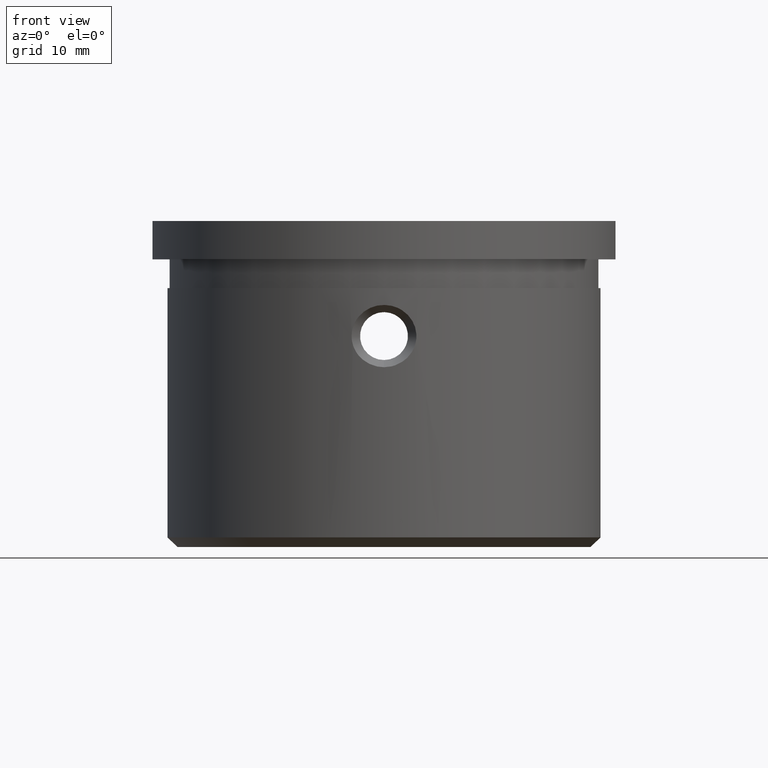
[diagram: clean part render]
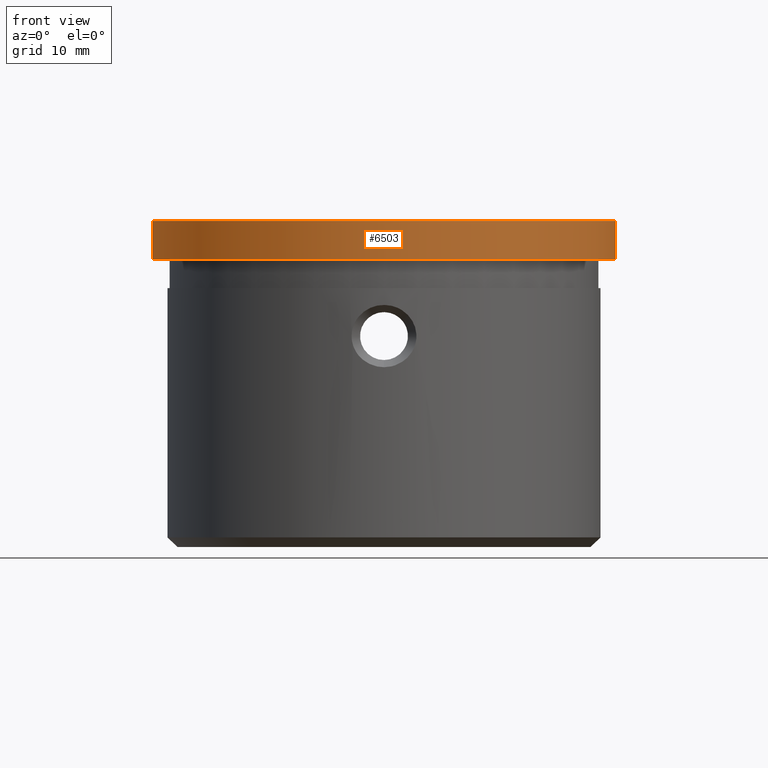
[diagram: same view with one face highlighted and labeled with its STEP entity id]
A machine part, front view. The second image highlights one B-rep face of the part: STEP entity #6503.
In plain terms, the highlighted cylindrical surface (bore or boss wall) has radius 24.15 mm, axis along (-0, -0, -1).
Its self-contained STEP definition (entity closure, byte-faithful):
#73 = CIRCLE ( 'NONE', #19347, 24.14999999999999900 ) ;
#951 = ORIENTED_EDGE ( 'NONE', *, *, #8637, .T. ) ;
#999 = ORIENTED_EDGE ( 'NONE', *, *, #15832, .F. ) ;
#2099 = CARTESIAN_POINT ( 'NONE',  ( 24.14999999999999900, 0.0000000000000000000, 4.000000000000000000 ) ) ;
#2666 = AXIS2_PLACEMENT_3D ( 'NONE', #4386, #20006, #21796 ) ;
#2853 = FACE_OUTER_BOUND ( 'NONE', #19329, .T. ) ;
#3941 = CARTESIAN_POINT ( 'NONE',  ( 24.14999999999999900, 0.0000000000000000000, 0.0000000000000000000 ) ) ;
#4386 = CARTESIAN_POINT ( 'NONE',  ( 0.0000000000000000000, 0.0000000000000000000, 4.000000000000000000 ) ) ;
#5331 = DIRECTION ( 'NONE',  ( -1.000000000000000000, 0.0000000000000000000, 0.0000000000000000000 ) ) ;
#6230 = CIRCLE ( 'NONE', #2666, 24.14999999999999900 ) ;
#6503 = ADVANCED_FACE ( 'NONE', ( #20408, #2853 ), #14920, .T. ) ;
#6578 = VERTEX_POINT ( 'NONE', #3941 ) ;
#6870 = DIRECTION ( 'NONE',  ( 1.000000000000000000, 0.0000000000000000000, 0.0000000000000000000 ) ) ;
#8637 = EDGE_CURVE ( 'NONE', #6578, #6578, #73, .T. ) ;
#10420 = CARTESIAN_POINT ( 'NONE',  ( 0.0000000000000000000, 0.0000000000000000000, 0.0000000000000000000 ) ) ;
#10423 = CARTESIAN_POINT ( 'NONE',  ( 0.0000000000000000000, 0.0000000000000000000, 4.000000000000000000 ) ) ;
#12418 = AXIS2_PLACEMENT_3D ( 'NONE', #10423, #13954, #5331 ) ;
#12543 = VERTEX_POINT ( 'NONE', #2099 ) ;
#13954 = DIRECTION ( 'NONE',  ( -0.0000000000000000000, -0.0000000000000000000, -1.000000000000000000 ) ) ;
#14920 = CYLINDRICAL_SURFACE ( 'NONE', #12418, 24.14999999999999900 ) ;
#15193 = EDGE_LOOP ( 'NONE', ( #999 ) ) ;
#15832 = EDGE_CURVE ( 'NONE', #12543, #12543, #6230, .T. ) ;
#19329 = EDGE_LOOP ( 'NONE', ( #951 ) ) ;
#19347 = AXIS2_PLACEMENT_3D ( 'NONE', #10420, #20649, #6870 ) ;
#20006 = DIRECTION ( 'NONE',  ( 0.0000000000000000000, 0.0000000000000000000, 1.000000000000000000 ) ) ;
#20408 = FACE_OUTER_BOUND ( 'NONE', #15193, .T. ) ;
#20649 = DIRECTION ( 'NONE',  ( 0.0000000000000000000, 0.0000000000000000000, 1.000000000000000000 ) ) ;
#21796 = DIRECTION ( 'NONE',  ( 1.000000000000000000, 0.0000000000000000000, 0.0000000000000000000 ) ) ;